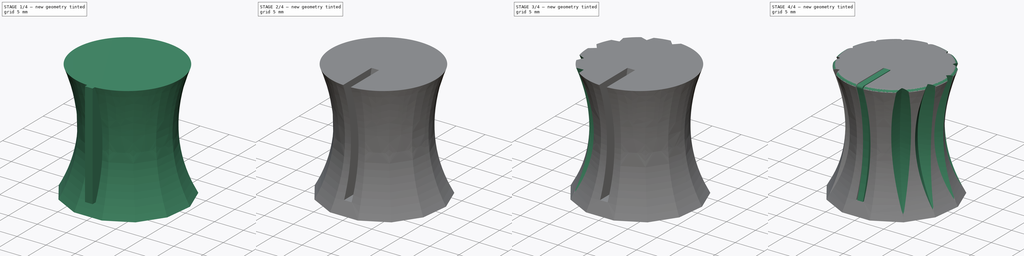
[diagram: build sequence overview — one tinted view per stage of 4, left to right]
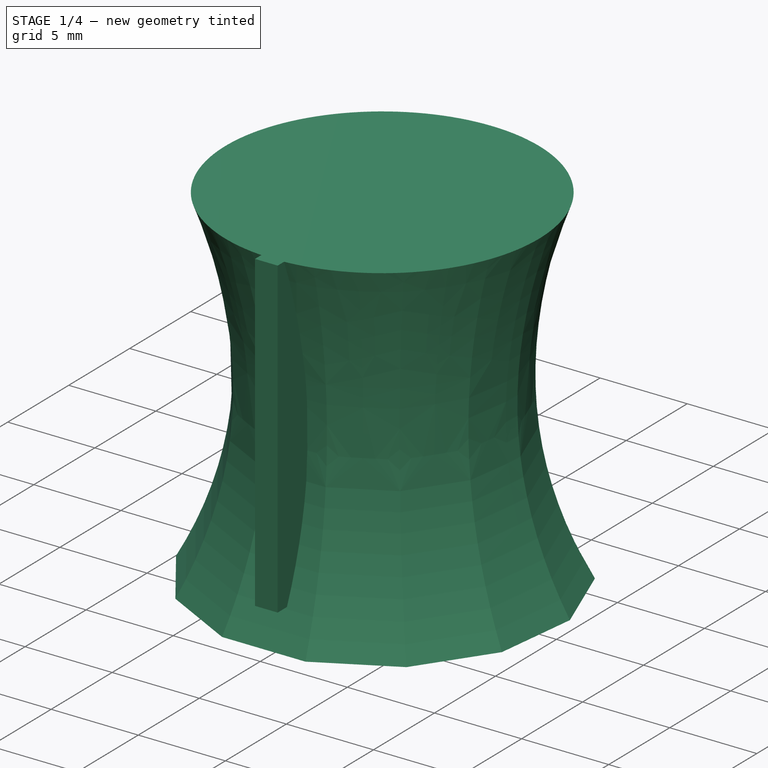
[diagram: stage 1 of 4 — iso view after this stage's code; geometry added in this stage tinted green]
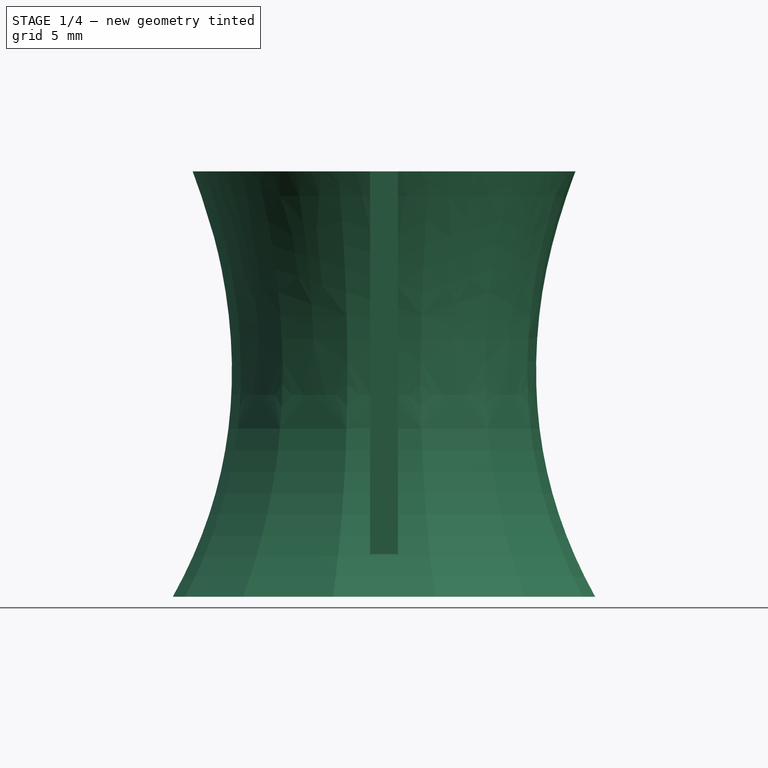
[diagram: stage 1 of 4 — front view after this stage's code; geometry added in this stage tinted green]
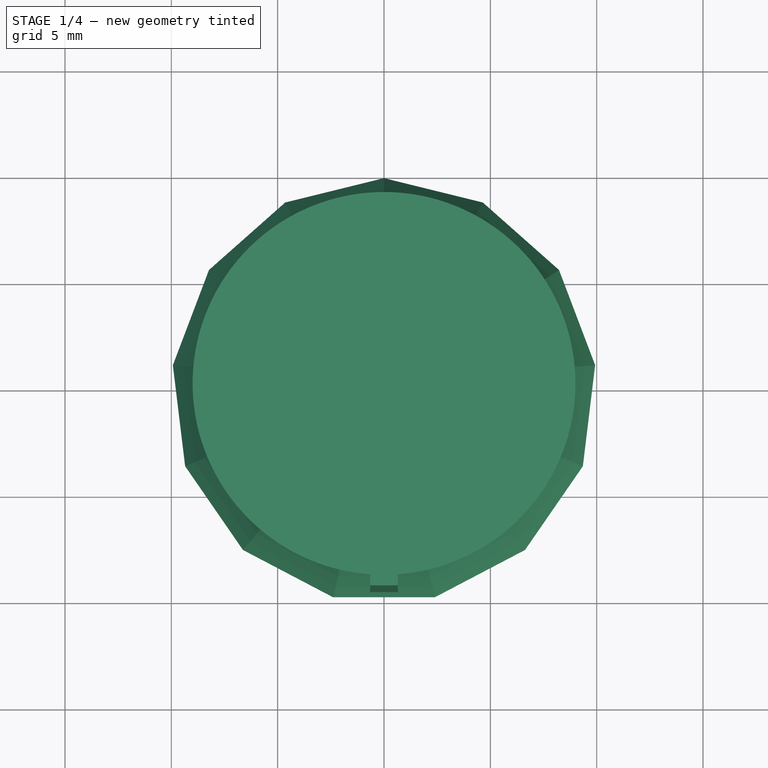
[diagram: stage 1 of 4 — top view after this stage's code; geometry added in this stage tinted green]
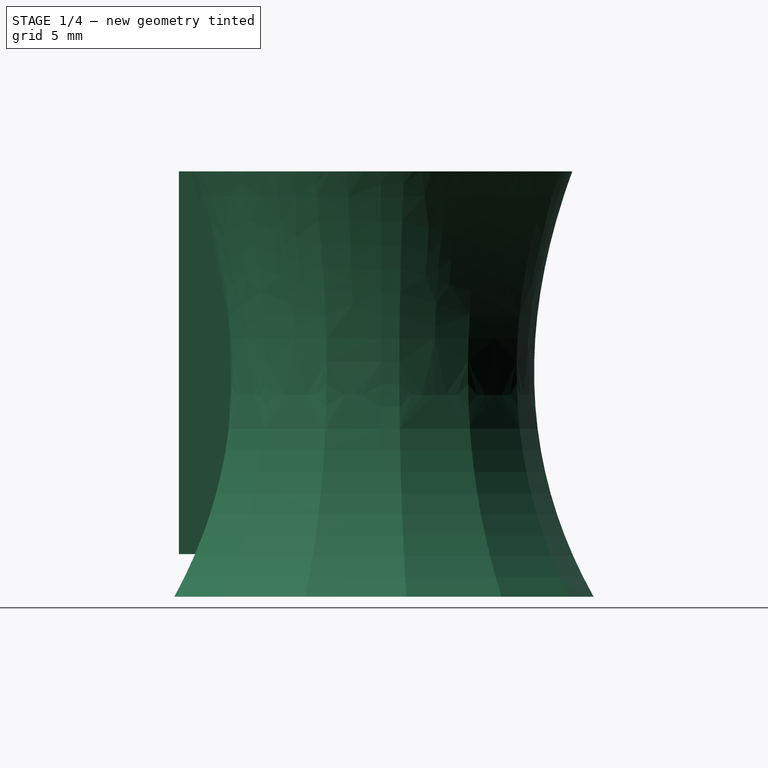
[diagram: stage 1 of 4 — right view after this stage's code; geometry added in this stage tinted green]
FCSTD DOCUMENT  (FreeCAD 0.19R24276 (Git))
Label: big fat 13
License: All rights reserved
LicenseURL: http://en.wikipedia.org/wiki/All_rights_reserved
objects: Sketcher::SketchObject×11, PartDesign::Plane×3, PartDesign::Pad×3, PartDesign::PolarPattern×3, PartDesign::Body×3, PartDesign::AdditiveLoft×1, PartDesign::Pocket×1, PartDesign::Boolean×1, PartDesign::SubtractiveLoft×1, PartDesign::Groove×1
note: 35 computed .brp shape members not serialized (recipe doc carries the construction recipe); baked Part::Feature solids carry a one-line shape summary decoded from their .brp

FEATURE [Sketcher::SketchObject] Sketch
  FullyConstrained = true
  MapMode = 5
  Support = -> [XY_Plane]
  sketch-geometry (15):
    g0: Circle CenterX=0 CenterY=0 CenterZ=0 NormalX=0 NormalY=0 NormalZ=1 AngleXU=0 Radius=10
    g1: LineSegment StartX=0 StartY=10 StartZ=0 EndX=-4.64723 EndY=8.85456 EndZ=0
    g2: LineSegment StartX=-4.64723 StartY=8.85456 StartZ=0 EndX=-8.22984 EndY=5.68065 EndZ=0
    g3: LineSegment StartX=-8.22984 StartY=5.68065 StartZ=0 EndX=-9.92709 EndY=1.20537 EndZ=0
    g4: LineSegment StartX=-9.92709 StartY=1.20537 StartZ=0 EndX=-9.35016 EndY=-3.54605 EndZ=0
    g5: LineSegment StartX=-9.35016 StartY=-3.54605 StartZ=0 EndX=-6.63123 EndY=-7.48511 EndZ=0
    g6: LineSegment StartX=-6.63123 StartY=-7.48511 StartZ=0 EndX=-2.39316 EndY=-9.70942 EndZ=0
    g7: LineSegment StartX=-2.39316 StartY=-9.70942 StartZ=0 EndX=2.39316 EndY=-9.70942 EndZ=0
    g8: LineSegment StartX=2.39316 StartY=-9.70942 StartZ=0 EndX=6.63123 EndY=-7.48511 EndZ=0
    g9: LineSegment StartX=6.63123 StartY=-7.48511 StartZ=0 EndX=9.35016 EndY=-3.54605 EndZ=0
    g10: LineSegment StartX=9.35016 StartY=-3.54605 StartZ=0 EndX=9.92709 EndY=1.20537 EndZ=0
    g11: LineSegment StartX=9.92709 StartY=1.20537 StartZ=0 EndX=8.22984 EndY=5.68065 EndZ=0
    g12: LineSegment StartX=8.22984 StartY=5.68065 StartZ=0 EndX=4.64723 EndY=8.85456 EndZ=0
    g13: LineSegment StartX=4.64723 StartY=8.85456 StartZ=0 EndX=0 EndY=10 EndZ=0
    g14: Circle CenterX=0 CenterY=0 CenterZ=0 NormalX=0 NormalY=0 NormalZ=1 AngleXU=0 Radius=10
  constraints (32):
    c: Coincident(g0,g-1)
    c: Diameter(g0) = 20
    c: Coincident(g1,g2)
    c: Coincident(g2,g3)
    c: Coincident(g3,g4)
    c: Coincident(g4,g5)
    c: Coincident(g5,g6)
    c: Coincident(g6,g7)
    c: Coincident(g7,g8)
    c: Coincident(g8,g9)
    c: Coincident(g9,g10)
    c: Coincident(g10,g11)
    c: Coincident(g11,g12)
    c: Coincident(g12,g13)
    c: Coincident(g13,g1)
    c: Equal(g1, g2-g13) x12
    c: PointOnObject(g1,g14)
    c: PointOnObject(g2,g14)
    c: PointOnObject(g3,g14)
    c: PointOnObject(g4,g14)
    c: PointOnObject(g5,g14)
    c: PointOnObject(g6,g14)
    c: PointOnObject(g7,g14)
    c: PointOnObject(g8,g14)
    c: PointOnObject(g9,g14)
    c: PointOnObject(g10,g14)
    c: PointOnObject(g11,g14)
    c: PointOnObject(g12,g14)
    c: PointOnObject(g13,g14)
    c: Coincident(g14,g0)
    c: PointOnObject(g13,g0)
    c: PointOnObject(g1,g-2)
FEATURE [PartDesign::Plane] DatumPlane
  AttachmentOffset = pos=(0,0,2) rot=(0,0,1;0rad)
  Length = 60
  MapMode = 5
  Placement = pos=(0,0,2) rot=(0,0,1;0rad)
  ResizeMode = 0
  Support = -> [XY_Plane]
  Width = 60
FEATURE [Sketcher::SketchObject] Sketch001
  FullyConstrained = true
  MapMode = 5
  Placement = pos=(0,0,2) rot=(0,0,1;0rad)
  Support = -> [DatumPlane]
  sketch-geometry (15):
    g0: Circle CenterX=0 CenterY=0 CenterZ=0 NormalX=0 NormalY=0 NormalZ=1 AngleXU=0 Radius=9
    g1: LineSegment StartX=0 StartY=9 StartZ=0 EndX=-4.18251 EndY=7.9691 EndZ=0
    g2: LineSegment StartX=-4.18251 StartY=7.9691 StartZ=0 EndX=-7.40685 EndY=5.11258 EndZ=0
    g3: LineSegment StartX=-7.40685 StartY=5.11258 StartZ=0 EndX=-8.93438 EndY=1.08483 EndZ=0
    g4: LineSegment StartX=-8.93438 StartY=1.08483 StartZ=0 EndX=-8.41515 EndY=-3.19144 EndZ=0
    g5: LineSegment StartX=-8.41515 StartY=-3.19144 StartZ=0 EndX=-5.9681 EndY=-6.7366 EndZ=0
    g6: LineSegment StartX=-5.9681 StartY=-6.7366 StartZ=0 EndX=-2.15384 EndY=-8.73848 EndZ=0
    g7: LineSegment StartX=-2.15384 StartY=-8.73848 StartZ=0 EndX=2.15384 EndY=-8.73848 EndZ=0
    g8: LineSegment StartX=2.15384 StartY=-8.73848 StartZ=0 EndX=5.9681 EndY=-6.7366 EndZ=0
    g9: LineSegment StartX=5.9681 StartY=-6.7366 StartZ=0 EndX=8.41515 EndY=-3.19144 EndZ=0
    g10: LineSegment StartX=8.41515 StartY=-3.19144 StartZ=0 EndX=8.93438 EndY=1.08483 EndZ=0
    g11: LineSegment StartX=8.93438 StartY=1.08483 StartZ=0 EndX=7.40685 EndY=5.11258 EndZ=0
    g12: LineSegment StartX=7.40685 StartY=5.11258 StartZ=0 EndX=4.18251 EndY=7.9691 EndZ=0
    g13: LineSegment StartX=4.18251 StartY=7.9691 StartZ=0 EndX=0 EndY=9 EndZ=0
    g14: Circle CenterX=0 CenterY=0 CenterZ=0 NormalX=0 NormalY=0 NormalZ=1 AngleXU=0 Radius=9
  constraints (32):
    c: Coincident(g0,g-1)
    c: Diameter(g0) = 18
    c: Coincident(g1,g2)
    c: Coincident(g2,g3)
    c: Coincident(g3,g4)
    c: Coincident(g4,g5)
    c: Coincident(g5,g6)
    c: Coincident(g6,g7)
    c: Coincident(g7,g8)
    c: Coincident(g8,g9)
    c: Coincident(g9,g10)
    c: Coincident(g10,g11)
    c: Coincident(g11,g12)
    c: Coincident(g12,g13)
    c: Coincident(g13,g1)
    c: Equal(g1, g2-g13) x12
    c: PointOnObject(g1,g14)
    c: PointOnObject(g2,g14)
    c: PointOnObject(g3,g14)
    c: PointOnObject(g4,g14)
    c: PointOnObject(g5,g14)
    c: PointOnObject(g6,g14)
    c: PointOnObject(g7,g14)
    c: PointOnObject(g8,g14)
    c: PointOnObject(g9,g14)
    c: PointOnObject(g10,g14)
    c: PointOnObject(g11,g14)
    c: PointOnObject(g12,g14)
    c: PointOnObject(g13,g14)
    c: Coincident(g14,g-1)
    c: PointOnObject(g13,g0)
    c: PointOnObject(g1,g-2)
FEATURE [PartDesign::Plane] DatumPlane001
  AttachmentOffset = pos=(0,0,20) rot=(0,0,1;0rad)
  Length = 60
  MapMode = 5
  Placement = pos=(0,0,20) rot=(0,0,1;0rad)
  ResizeMode = 0
  Support = -> [XY_Plane]
  Width = 60
FEATURE [Sketcher::SketchObject] Sketch002
  FullyConstrained = true
  MapMode = 5
  Placement = pos=(0,0,20) rot=(0,0,1;0rad)
  Support = -> [DatumPlane001]
  sketch-geometry (1):
    g0: Circle CenterX=0 CenterY=0 CenterZ=0 NormalX=0 NormalY=0 NormalZ=1 AngleXU=0 Radius=9
  constraints (2):
    c: Coincident(g0,g-1)
    c: Diameter(g0) = 18
FEATURE [PartDesign::AdditiveLoft] AdditiveLoft
  Closed = false
  Profile = -> Sketch
  Ruled = false
  Sections = -> [Sketch001,Sketch002]
FEATURE [Sketcher::SketchObject] Sketch003
  FullyConstrained = true
  MapMode = 5
  Support = -> [XY_Plane]
  sketch-geometry (1):
    g0: Circle CenterX=0 CenterY=0 CenterZ=0 NormalX=0 NormalY=0 NormalZ=1 AngleXU=0 Radius=3.1
  constraints (2):
    c: Coincident(g0,g-1)
    c: Diameter(g0) = 6.2
FEATURE [PartDesign::Pocket] Pocket
  BaseFeature = -> AdditiveLoft
  Length = 10
  Length2 = 100
  Profile = -> Sketch003
  Reversed = true
  Type = 0
FEATURE [PartDesign::Body] Body001  label="pointer"
  Group = -> [Sketch005,Pad001]
  Origin = -> Origin001
  Tip = -> Pad001
FEATURE [Sketcher::SketchObject] Sketch006
  FullyConstrained = true
  MapMode = 5
  Placement = pos=(0,0,0) rot=(0.57735,0.57735,0.57735;2.0944rad)
  Support = -> [YZ_Plane002]
  sketch-geometry (4):
    g0: LineSegment StartX=-2 StartY=20 StartZ=0 EndX=-9.5 EndY=20 EndZ=0
    g1: LineSegment StartX=-9.5 StartY=20 StartZ=0 EndX=-9.5 EndY=2 EndZ=0
    g2: LineSegment StartX=-9.5 StartY=2 StartZ=0 EndX=-6 EndY=2 EndZ=0
    g3: LineSegment StartX=-6 StartY=2 StartZ=0 EndX=-2 EndY=20 EndZ=0
  constraints (12):
    c: Horizontal(g0)
    c: Coincident(g0,g1)
    c: Coincident(g1,g2)
    c: Horizontal(g2)
    c: Coincident(g2,g3)
    c: Coincident(g3,g0)
    c: DistanceY(g0) = 20
    c: DistanceX(g0) = -9.5
    c: DistanceX(g0) = -2
    c: DistanceX(g2) = -6
    c: DistanceY(g2) = 2
    c: DistanceX(g1) = -9.5
FEATURE [PartDesign::Pad] Pad002
  Direction = (1,1,1)
  Length = 1.3
  Length2 = 100
  Midplane = true
  Placement = pos=(0,0,0) rot=(0.57735,0.57735,0.57735;2.0944rad)
  Profile = -> Sketch006
  Type = 0
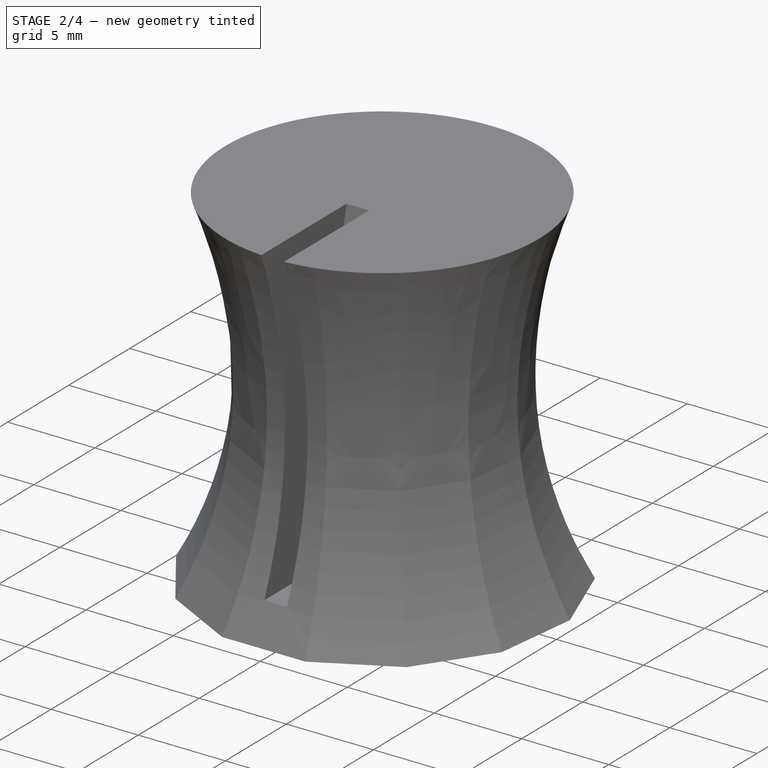
[diagram: stage 2 of 4 — iso view after this stage's code; geometry added in this stage tinted green]
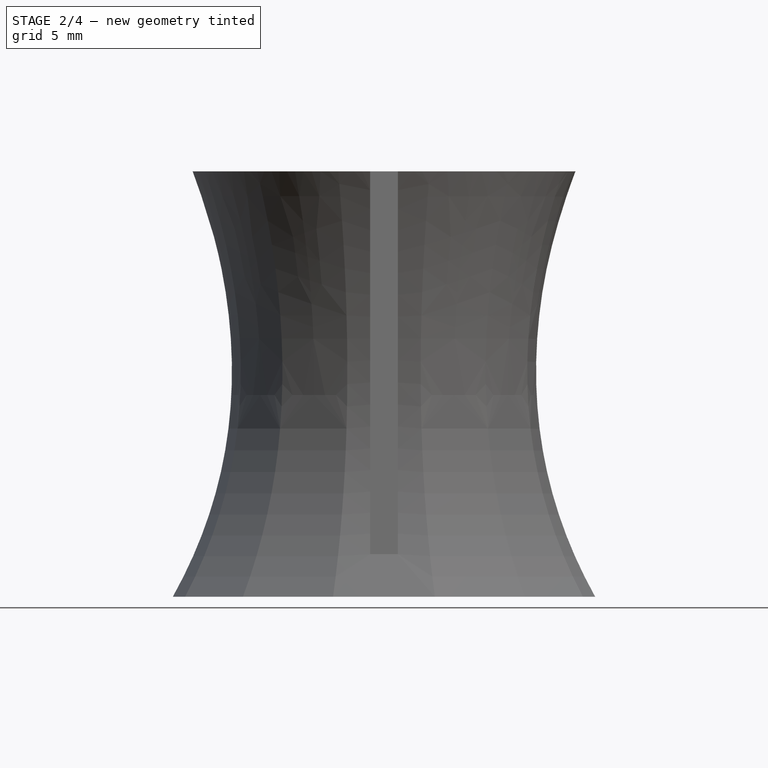
[diagram: stage 2 of 4 — front view after this stage's code; geometry added in this stage tinted green]
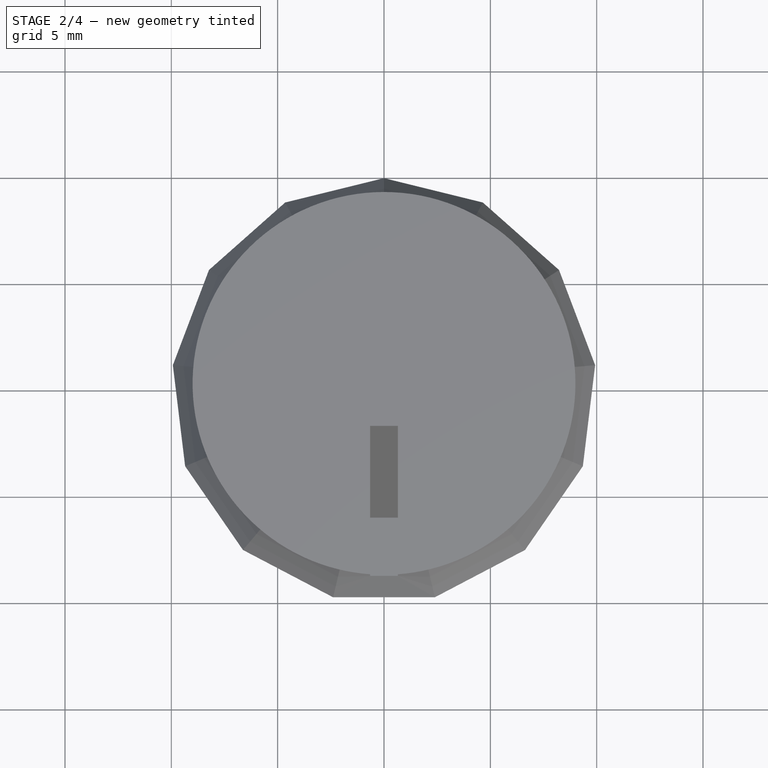
[diagram: stage 2 of 4 — top view after this stage's code; geometry added in this stage tinted green]
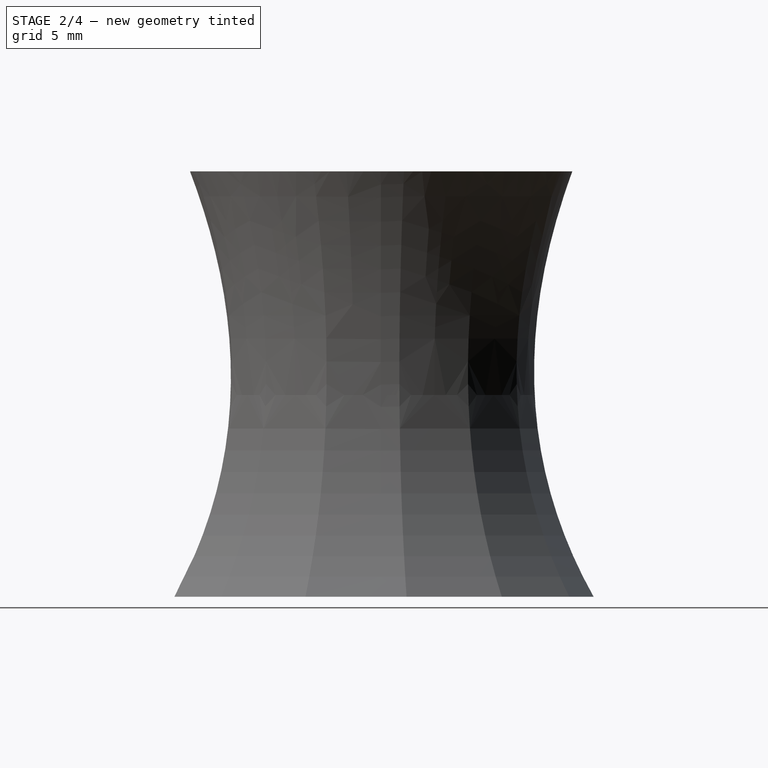
[diagram: stage 2 of 4 — right view after this stage's code; geometry added in this stage tinted green]
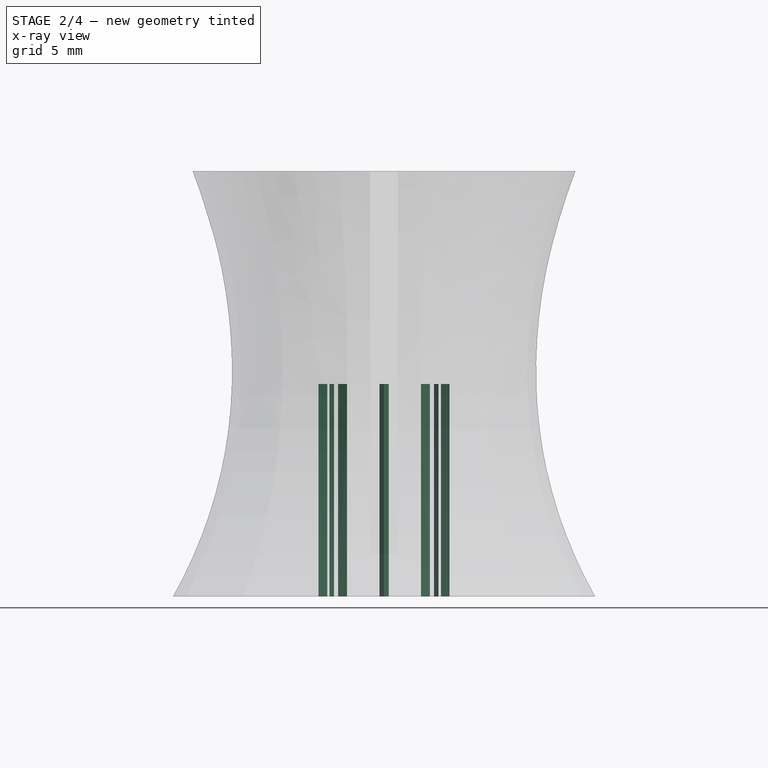
[diagram: stage 2 of 4 — x-ray composite at the front view; earlier geometry ghosted, this stage's added geometry solid]
FEATURE [Sketcher::SketchObject] Sketch004
  FullyConstrained = true
  MapMode = 5
  Support = -> [XY_Plane]
  sketch-geometry (6):
    g0: Circle CenterX=0 CenterY=0 CenterZ=0 NormalX=0 NormalY=0 NormalZ=1 AngleXU=0 Radius=3.15
    g1: LineSegment StartX=-0.25 StartY=3.14006 StartZ=0 EndX=0 EndY=2.70705 EndZ=0
    g2: LineSegment StartX=0 StartY=2.70705 StartZ=0 EndX=0.25 EndY=3.14006 EndZ=0
    g3: LineSegment StartX=0.25 StartY=3.14006 StartZ=0 EndX=0 EndY=3.57308 EndZ=0
    g4: LineSegment StartX=0 StartY=3.57308 StartZ=0 EndX=-0.25 EndY=3.14006 EndZ=0
    g5: LineSegment StartX=-0.25 StartY=3.14006 StartZ=0 EndX=0.25 EndY=3.14006 EndZ=0
  constraints (15):
    c: Coincident(g0,g-1)
    c: Diameter(g0) = 6.3
    c: PointOnObject(g1,g0)
    c: PointOnObject(g1,g-2)
    c: Coincident(g1,g2)
    c: Coincident(g2,g3)
    c: PointOnObject(g3,g-2)
    c: Coincident(g3,g4)
    c: Coincident(g4,g1)
    c: Symmetric(g1,g2,g-2)
    c: Coincident(g5,g1)
    c: Coincident(g5,g2)
    c: Equal(g5,g1)
    c: Equal(g2,g3)
    c: Distance(g2) = 0.5
FEATURE [PartDesign::Pad] Pad
  BaseFeature = -> Pocket
  Direction = (1,1,1)
  Length = 10
  Length2 = 100
  Profile = -> Sketch004
  Type = 0
FEATURE [PartDesign::PolarPattern] PolarPattern
  Angle = 360
  Axis = -> Sketch004 [N_Axis]
  BaseFeature = -> Pad
  Occurrences = 9
  Originals = -> [Pad]
FEATURE [PartDesign::Body] Body002  label="hole"
  Group = -> [Sketch006,Pad002]
  Origin = -> Origin002
  Tip = -> Pad002
FEATURE [PartDesign::Boolean] Boolean
  BaseFeature = -> PolarPattern
  Group = -> [Body002]
  Type = 1
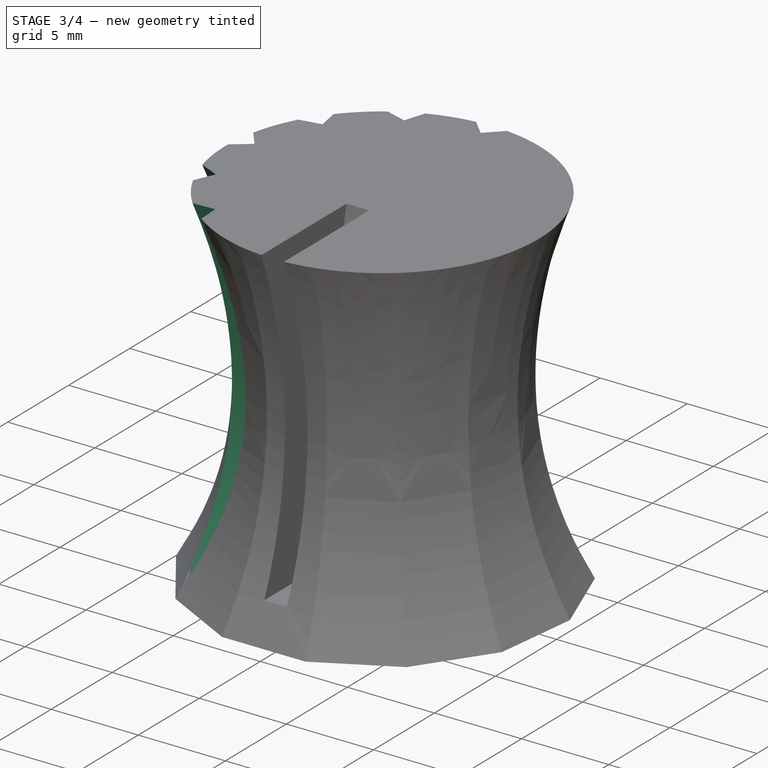
[diagram: stage 3 of 4 — iso view after this stage's code; geometry added in this stage tinted green]
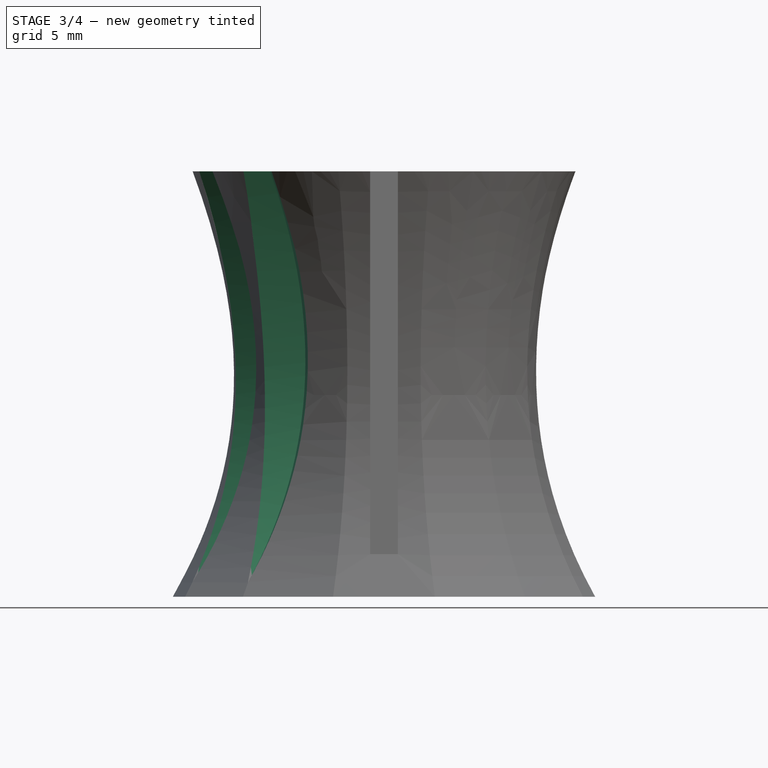
[diagram: stage 3 of 4 — front view after this stage's code; geometry added in this stage tinted green]
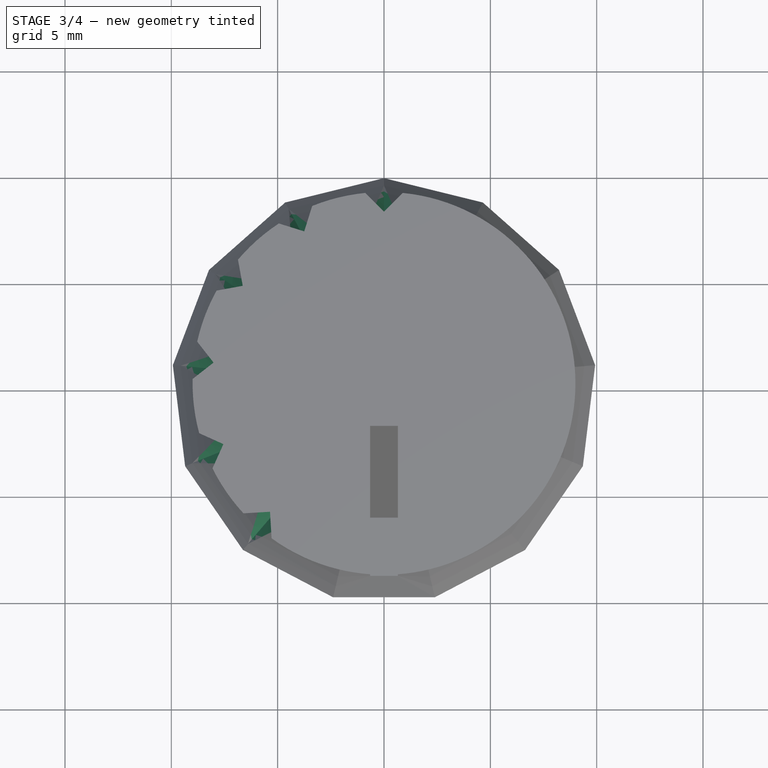
[diagram: stage 3 of 4 — top view after this stage's code; geometry added in this stage tinted green]
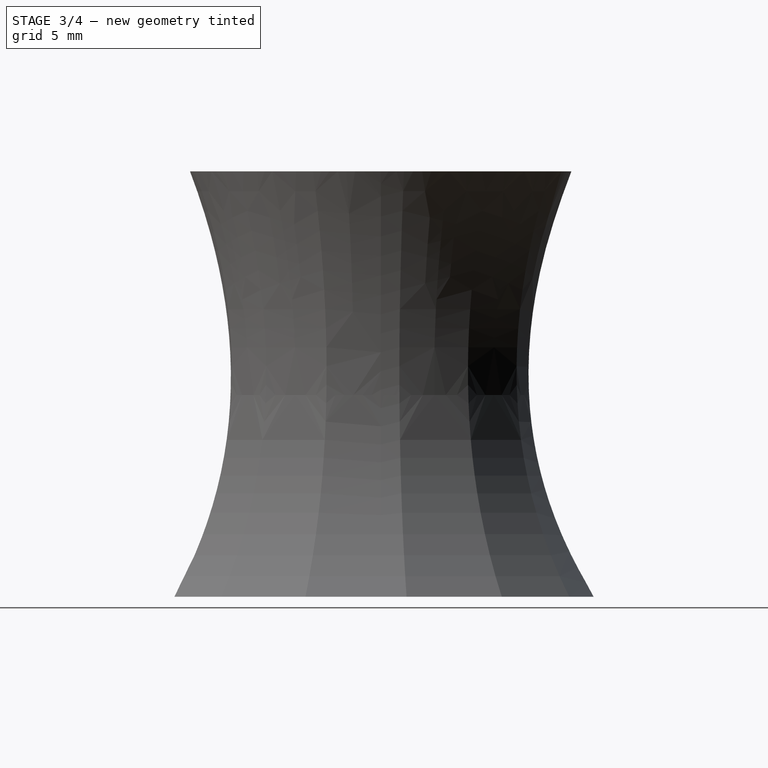
[diagram: stage 3 of 4 — right view after this stage's code; geometry added in this stage tinted green]
FEATURE [Sketcher::SketchObject] Sketch007
  FullyConstrained = true
  MapMode = 5
  Placement = pos=(0,0,20) rot=(0,0,1;0rad)
  Support = -> [DatumPlane001]
  sketch-geometry (5):
    g0: Circle CenterX=0 CenterY=0 CenterZ=0 NormalX=0 NormalY=0 NormalZ=1 AngleXU=0 Radius=9
    g1: LineSegment StartX=0.883883 StartY=8.95649 StartZ=0 EndX=0 EndY=8.07261 EndZ=0
    g2: LineSegment StartX=0 StartY=8.07261 StartZ=0 EndX=-0.883883 EndY=8.95649 EndZ=0
    g3: LineSegment StartX=-0.883883 StartY=8.95649 StartZ=0 EndX=0 EndY=9.84038 EndZ=0
    g4: LineSegment StartX=0 StartY=9.84038 StartZ=0 EndX=0.883883 EndY=8.95649 EndZ=0
  constraints (13):
    c: Coincident(g0,g-1)
    c: Diameter(g0) = 18
    c: PointOnObject(g1,g0)
    c: PointOnObject(g1,g-2)
    c: Coincident(g1,g2)
    c: Coincident(g2,g3)
    c: PointOnObject(g3,g-2)
    c: Coincident(g3,g4)
    c: Coincident(g4,g1)
    c: Symmetric(g2,g1,g-2)
    c: Equal(g3,g2)
    c: Distance(g2) = 1.25
    c: Perpendicular(g1,g2)
FEATURE [PartDesign::Plane] DatumPlane002
  AttachmentOffset = pos=(0,0,7) rot=(0,0,1;0rad)
  Length = 60
  MapMode = 5
  Placement = pos=(0,0,7) rot=(0,0,1;0rad)
  ResizeMode = 0
  Support = -> [XY_Plane]
  Width = 60
FEATURE [Sketcher::SketchObject] Sketch008
  FullyConstrained = true
  MapMode = 5
  Placement = pos=(0,0,7) rot=(0,0,1;0rad)
  Support = -> [DatumPlane002]
  sketch-geometry (5):
    g0: Circle CenterX=0 CenterY=0 CenterZ=0 NormalX=0 NormalY=0 NormalZ=1 AngleXU=0 Radius=7.7
    g1: LineSegment StartX=-1.41421 StartY=7.56902 StartZ=0 EndX=0 EndY=6.1548 EndZ=0
    g2: LineSegment StartX=0 StartY=6.1548 StartZ=0 EndX=1.41421 EndY=7.56902 EndZ=0
    g3: LineSegment StartX=1.41421 StartY=7.56902 StartZ=0 EndX=0 EndY=8.98323 EndZ=0
    g4: LineSegment StartX=0 StartY=8.98323 StartZ=0 EndX=-1.41421 EndY=7.56902 EndZ=0
  constraints (13):
    c: Coincident(g0,g-1)
    c: Diameter(g0) = 15.4
    c: PointOnObject(g1,g0)
    c: PointOnObject(g1,g-2)
    c: Coincident(g1,g2)
    c: Coincident(g2,g3)
    c: PointOnObject(g3,g-2)
    c: Coincident(g3,g4)
    c: Coincident(g4,g1)
    c: Equal(g2,g3)
    c: Perpendicular(g2,g1)
    c: Symmetric(g2,g1,g-2)
    c: Distance(g2) = 2
FEATURE [Sketcher::SketchObject] Sketch009
  FullyConstrained = true
  MapMode = 5
  Support = -> [XY_Plane001]
  sketch-geometry (5):
    g0: Circle CenterX=0 CenterY=0 CenterZ=0 NormalX=0 NormalY=0 NormalZ=1 AngleXU=0 Radius=10.75
    g1: LineSegment StartX=-0.53033 StartY=10.7369 StartZ=0 EndX=0 EndY=10.2066 EndZ=0
    g2: LineSegment StartX=0 StartY=10.2066 StartZ=0 EndX=0.53033 EndY=10.7369 EndZ=0
    g3: LineSegment StartX=0.53033 StartY=10.7369 StartZ=0 EndX=0 EndY=11.2672 EndZ=0
    g4: LineSegment StartX=0 StartY=11.2672 StartZ=0 EndX=-0.53033 EndY=10.7369 EndZ=0
  constraints (13):
    c: Coincident(g0,g-1)
    c: Diameter(g0) = 21.5
    c: PointOnObject(g1,g0)
    c: PointOnObject(g1,g-2)
    c: Coincident(g1,g2)
    c: Coincident(g2,g3)
    c: PointOnObject(g3,g-2)
    c: Coincident(g3,g4)
    c: Coincident(g4,g1)
    c: Equal(g3,g2)
    c: Distance(g2) = 0.75
    c: Symmetric(g1,g2,g-2)
    c: Perpendicular(g2,g1)
FEATURE [PartDesign::SubtractiveLoft] SubtractiveLoft
  BaseFeature = -> Boolean
  Closed = false
  Profile = -> Sketch007
  Ruled = false
  Sections = -> [Sketch008,Sketch009]
FEATURE [PartDesign::PolarPattern] PolarPattern001
  Angle = 138.4
  Axis = -> Sketch007 [N_Axis]
  BaseFeature = -> SubtractiveLoft
  Occurrences = 6
  Originals = -> [SubtractiveLoft]
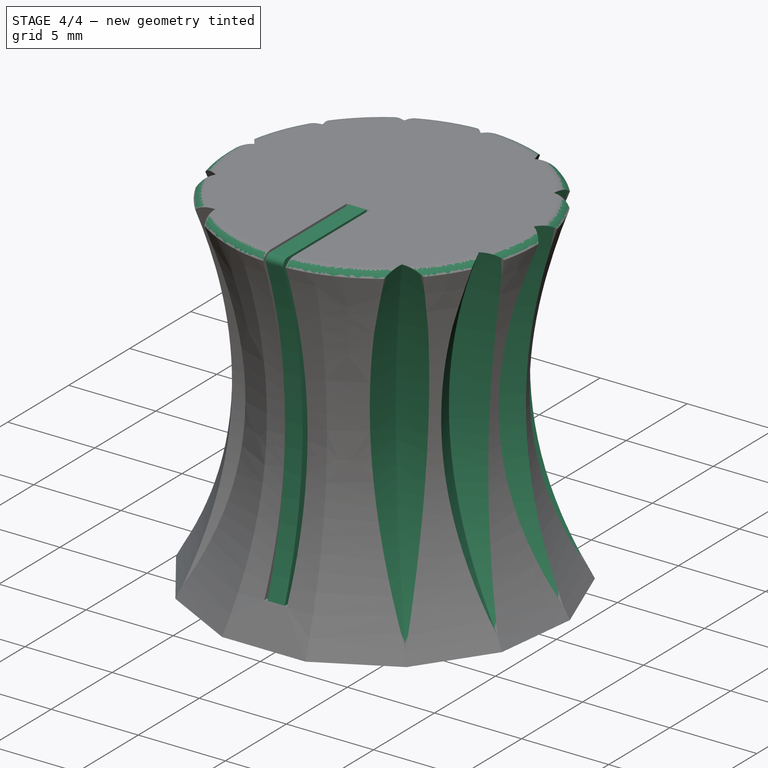
[diagram: stage 4 of 4 — iso view after this stage's code; geometry added in this stage tinted green]
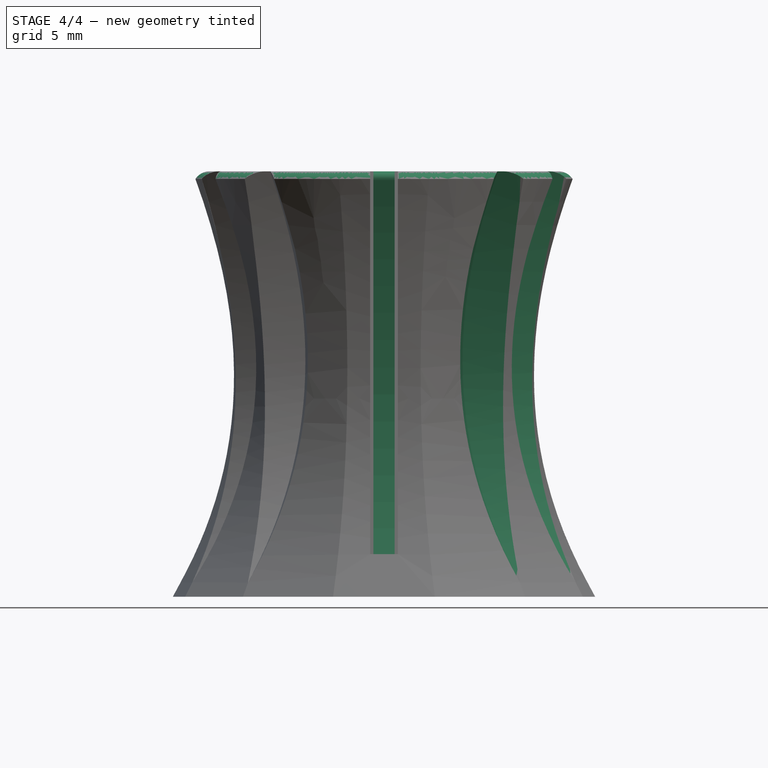
[diagram: stage 4 of 4 — front view after this stage's code; geometry added in this stage tinted green]
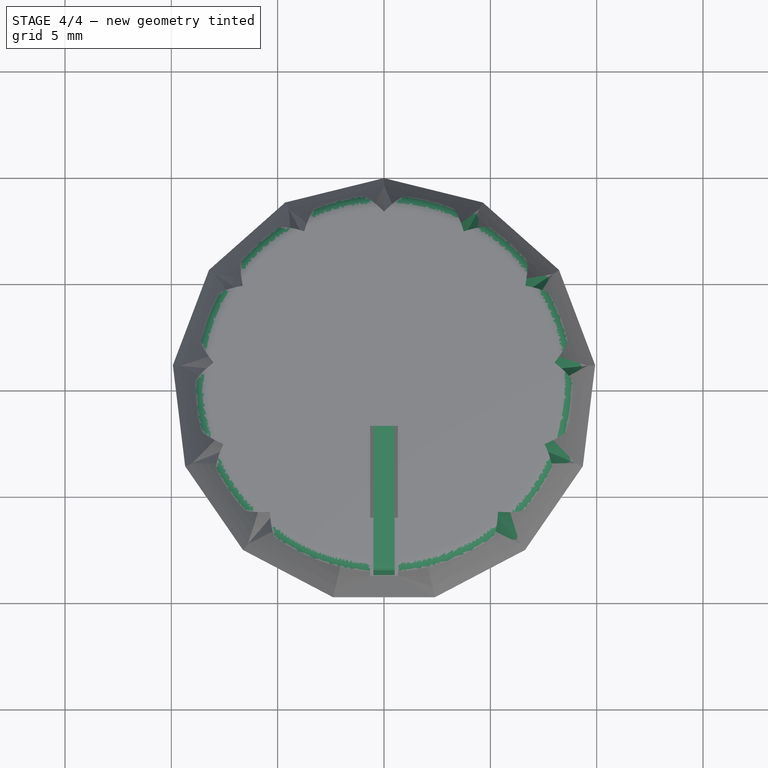
[diagram: stage 4 of 4 — top view after this stage's code; geometry added in this stage tinted green]
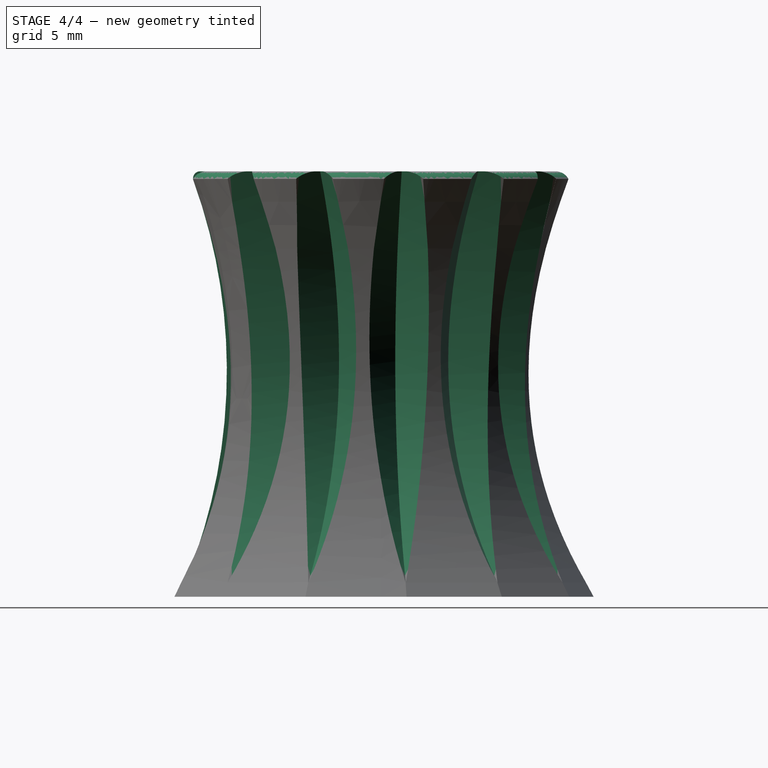
[diagram: stage 4 of 4 — right view after this stage's code; geometry added in this stage tinted green]
FEATURE [Sketcher::SketchObject] Sketch005
  FullyConstrained = false
  MapMode = 5
  Placement = pos=(0,0,0) rot=(0.57735,0.57735,0.57735;2.0944rad)
  Support = -> [YZ_Plane001]
  sketch-geometry (5):
    g0: LineSegment StartX=-2 StartY=20 StartZ=0 EndX=-8.50397 EndY=20 EndZ=0
    g1: LineSegment StartX=-8.7 StartY=2 StartZ=0 EndX=-6 EndY=2 EndZ=0
    g2: LineSegment StartX=-6 StartY=2 StartZ=0 EndX=-2 EndY=20 EndZ=0
    g3: ArcOfCircle CenterX=-33.4947 CenterY=10.6222 CenterZ=0 NormalX=0 NormalY=0 NormalZ=1 AngleXU=0 Radius=26.2511 StartAngle=5.94852 EndAngle=6.63063
    g4: ArcOfCircle CenterX=-8.50397 CenterY=19.6722 CenterZ=0 NormalX=0 NormalY=0 NormalZ=1 AngleXU=0 Radius=0.327841 StartAngle=1.5708 EndAngle=3.48904
  constraints (12):
    c: Horizontal(g0)
    c: Horizontal(g1)
    c: Coincident(g1,g2)
    c: Coincident(g2,g0)
    c: DistanceY(g0) = 20
    c: DistanceX(g0) = -2
    c: DistanceX(g1) = -6
    c: DistanceY(g1) = 2
    c: Coincident(g3,g1)
    c: DistanceX(g1) = -8.7
    c: Tangent(g0,g4) = -1.5708
    c: Tangent(g3,g4) = 1.5708
FEATURE [PartDesign::Pad] Pad001
  Direction = (1,1,1)
  Length = 1
  Length2 = 100
  Midplane = true
  Placement = pos=(0,0,0) rot=(0.57735,0.57735,0.57735;2.0944rad)
  Profile = -> Sketch005
  Type = 0
FEATURE [PartDesign::PolarPattern] PolarPattern002
  Angle = 138.4
  Axis = -> Sketch007 [N_Axis]
  BaseFeature = -> PolarPattern001
  Occurrences = 6
  Originals = -> [SubtractiveLoft]
  Reversed = true
FEATURE [Sketcher::SketchObject] Sketch010
  FullyConstrained = false
  MapMode = 5
  Placement = pos=(0,0,0) rot=(1,0,0;1.5708rad)
  Support = -> [XZ_Plane]
  sketch-geometry (8):
    g0: LineSegment StartX=0 StartY=21.3449 StartZ=0 EndX=0 EndY=20 EndZ=0
    g1: LineSegment StartX=0 StartY=20 StartZ=0 EndX=-8.2003 EndY=20 EndZ=0
    g2: LineSegment StartX=-9 StartY=19.178 StartZ=0 EndX=-8.97167 EndY=18.15 EndZ=0
    g3: LineSegment StartX=-8.97167 StartY=18.15 StartZ=0 EndX=-13.0037 EndY=18.15 EndZ=0
    g4: LineSegment StartX=-13.0037 StartY=18.15 StartZ=0 EndX=-13.0037 EndY=20.6352 EndZ=0
    g5: LineSegment StartX=-13.0037 StartY=20.6352 StartZ=0 EndX=0 EndY=21.3449 EndZ=0
    g6: ArcOfCircle CenterX=-8.2003 CenterY=19.2 CenterZ=0 NormalX=0 NormalY=0 NormalZ=1 AngleXU=0 Radius=0.8 StartAngle=1.5708 EndAngle=3.16914
    g7: GeomPoint X=-9.02265 Y=20 Z=0
  constraints (17):
    c: PointOnObject(g0,g-2)
    c: Vertical(g0)
    c: Coincident(g0,g1)
    c: Horizontal(g1)
    c: Coincident(g2,g3)
    c: Horizontal(g3)
    c: Coincident(g3,g4)
    c: Vertical(g4)
    c: Coincident(g4,g5)
    c: Coincident(g5,g0)
    c: DistanceY(g0) = 20
    c: PointOnObject(g7,g1)
    c: PointOnObject(g7,g2)
    c: Tangent(g1,g6) = -1.5708
    c: Tangent(g2,g6) = -1.5708
    c: Radius(g6) = 0.8
    c: DistanceX(g2) = -9
FEATURE [PartDesign::Groove] Groove
  Angle = 360
  Axis = (0,-2e-16,1)
  Base = (0,0,0)
  BaseFeature = -> PolarPattern002
  Profile = -> Sketch010
  ReferenceAxis = -> Sketch010 [V_Axis]
  Reversed = true
FEATURE [PartDesign::Body] Body  label="knob"
  Group = -> [Sketch,DatumPlane,Sketch001,DatumPlane001,DatumPlane002,Sketch002,AdditiveLoft,Sketch003,Pocket,Sketch004,Pad,PolarPattern,Boolean,Sketch007,Sketch008,SubtractiveLoft,Sketch009,PolarPattern001,PolarPattern002,Sketch010,Groove]
  Origin = -> Origin
  Tip = -> Groove
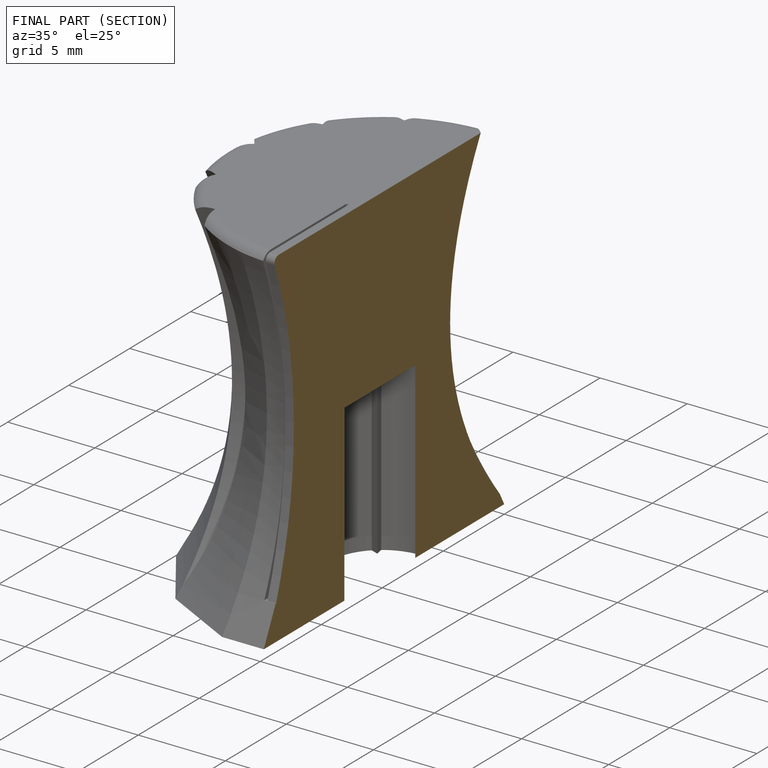
[diagram: finished part — half-section view (interior)]
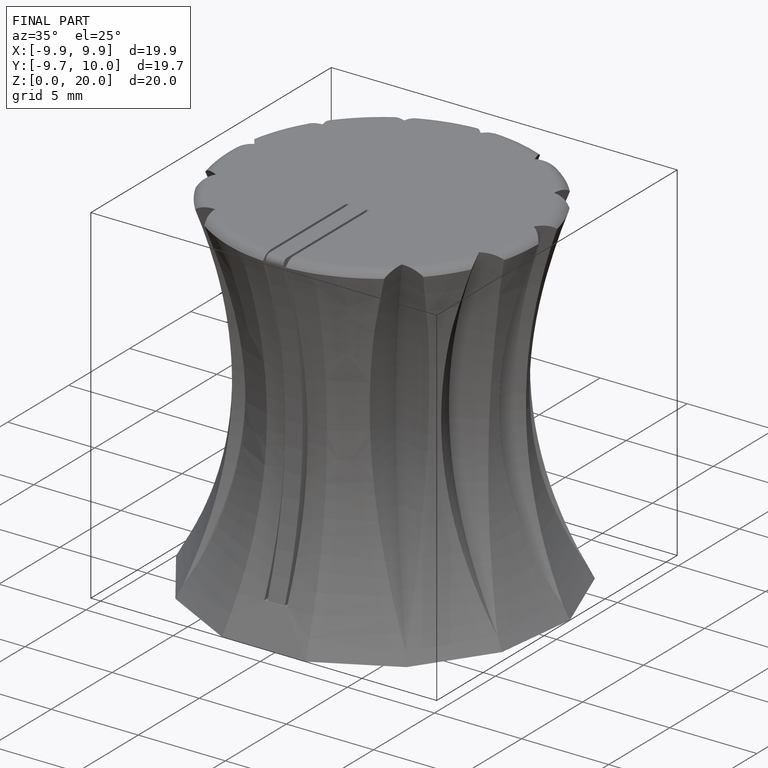
[diagram: finished part — iso view with bounding-box wireframe]
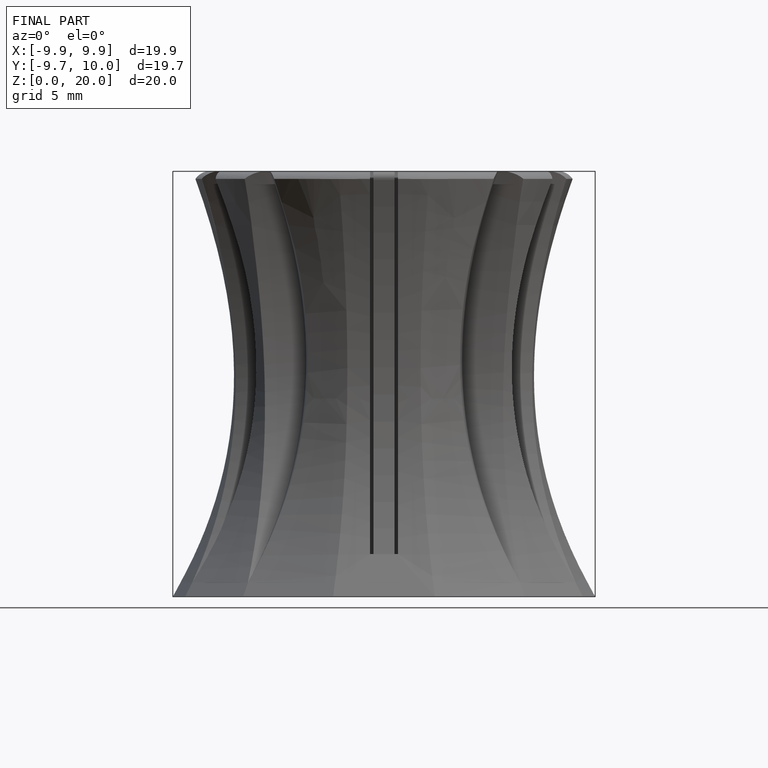
[diagram: finished part — front view with bounding-box wireframe]
